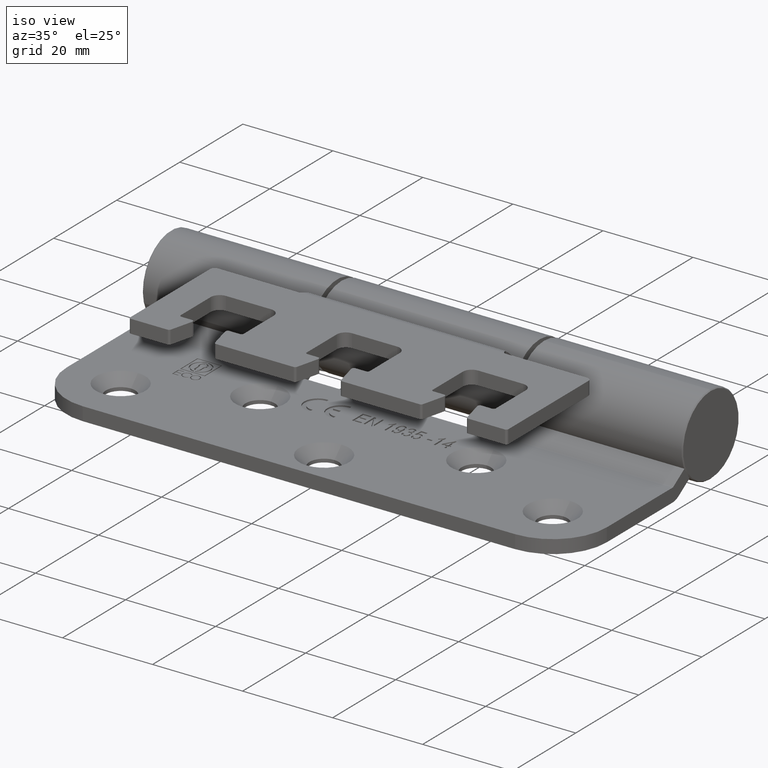
[diagram: clean part render]
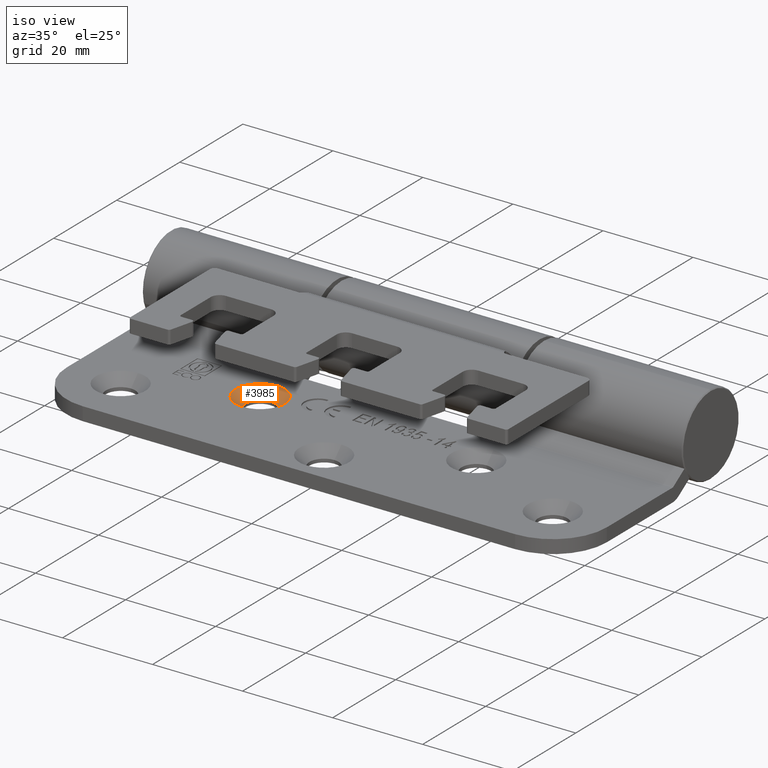
[diagram: same view with one face highlighted and labeled with its STEP entity id]
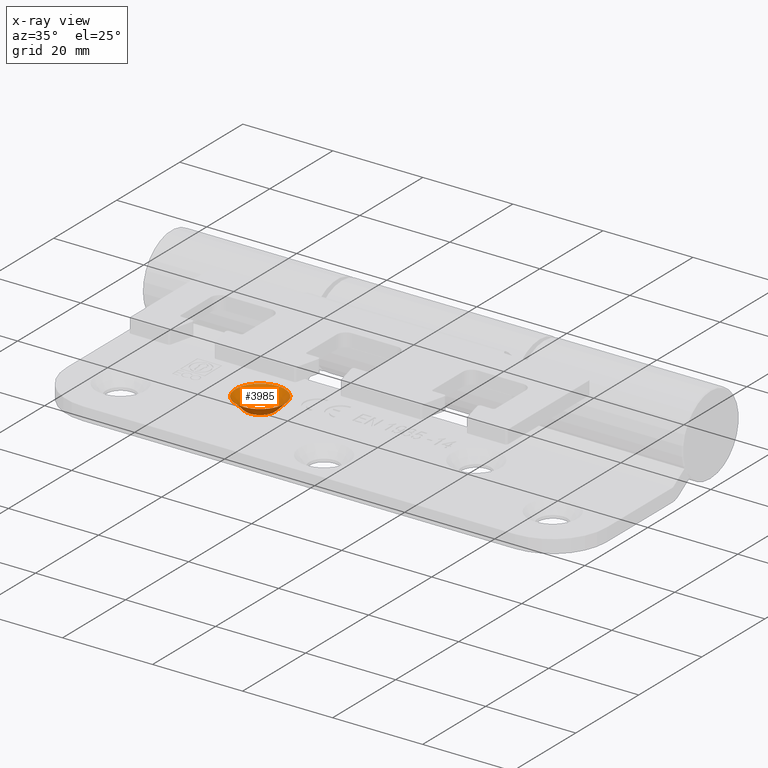
[diagram: x-ray of the same camera — body ghosted, the highlighted face saturated]
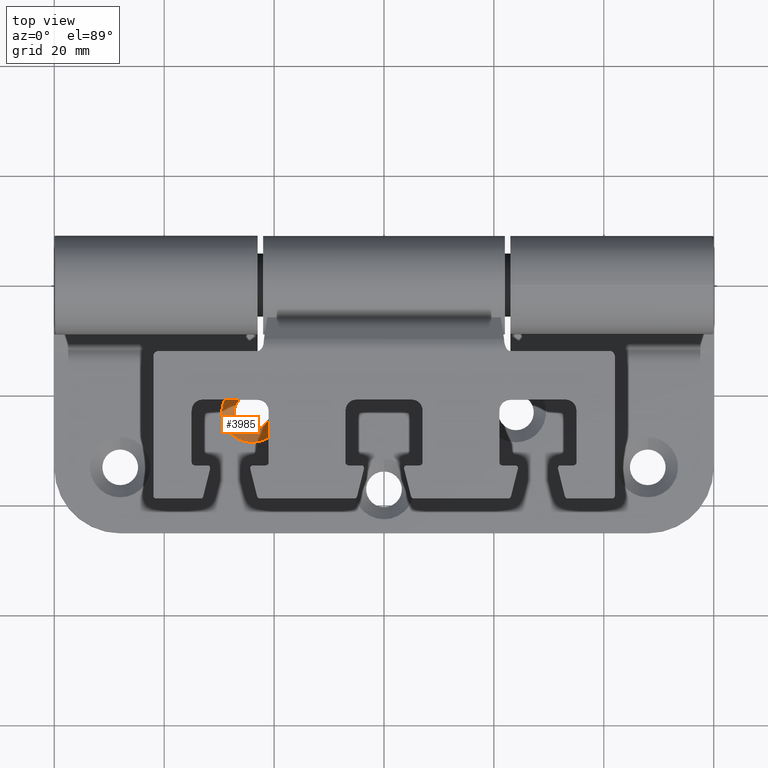
[diagram: same view with one face highlighted and labeled with its STEP entity id]
A machine part, iso view. The second image highlights one B-rep face of the part: STEP entity #3985.
The next image is the same camera in x-ray: the body ghosted, the highlighted face saturated — about 0% of this face is hidden behind the body in this view.
A second angle (top view) of the same face is appended — the face is thin or edge-on in the first view.
In plain terms, the highlighted conical surface has half-angle 45 deg.
Its self-contained STEP definition (entity closure, byte-faithful):
#13 = EDGE_LOOP ( 'NONE', ( #12611 ) ) ;
#259 = DIRECTION ( 'NONE',  ( 0.0000000000000000000, 0.0000000000000000000, 1.000000000000000000 ) ) ;
#1191 = DIRECTION ( 'NONE',  ( 0.0000000000000000000, 0.0000000000000000000, 1.000000000000000000 ) ) ;
#1645 = AXIS2_PLACEMENT_3D ( 'NONE', #6896, #2498, #9132 ) ;
#2427 = DIRECTION ( 'NONE',  ( -1.000000000000000000, 9.244463733058650000E-032, -3.944304526105024000E-031 ) ) ;
#2498 = DIRECTION ( 'NONE',  ( -1.000000000000000000, 9.244463733058650000E-032, -3.944304526105024000E-031 ) ) ;
#3266 = CARTESIAN_POINT ( 'NONE',  ( 8.250000000000053300, 23.99999999999999300, -19.75000000000015600 ) ) ;
#3540 = DIRECTION ( 'NONE',  ( -1.000000000000000000, 9.244463733058650000E-032, -3.944304526105024000E-031 ) ) ;
#3985 = ADVANCED_FACE ( 'NONE', ( #7219, #12926 ), #8434, .F. ) ;
#4544 = AXIS2_PLACEMENT_3D ( 'NONE', #4632, #2427, #259 ) ;
#4632 = CARTESIAN_POINT ( 'NONE',  ( 6.000000000000062200, 24.00000000000000000, -23.00000000000012800 ) ) ;
#6081 = VERTEX_POINT ( 'NONE', #9984 ) ;
#6896 = CARTESIAN_POINT ( 'NONE',  ( 8.250000000000053300, 23.99999999999999300, -23.00000000000018500 ) ) ;
#7219 = FACE_BOUND ( 'NONE', #9693, .T. ) ;
#7882 = CARTESIAN_POINT ( 'NONE',  ( 6.000000000000062200, 24.00000000000000000, -23.00000000000012800 ) ) ;
#8065 = EDGE_CURVE ( 'NONE', #6081, #6081, #9322, .T. ) ;
#8434 = CONICAL_SURFACE ( 'NONE', #12692, 5.500000000000046200, 0.7853981633974481700 ) ;
#8924 = VERTEX_POINT ( 'NONE', #3266 ) ;
#9132 = DIRECTION ( 'NONE',  ( 0.0000000000000000000, 0.0000000000000000000, 1.000000000000000000 ) ) ;
#9322 = CIRCLE ( 'NONE', #4544, 5.500000000000046200 ) ;
#9693 = EDGE_LOOP ( 'NONE', ( #13786 ) ) ;
#9984 = CARTESIAN_POINT ( 'NONE',  ( 6.000000000000062200, 24.00000000000000000, -17.50000000000008200 ) ) ;
#10538 = CIRCLE ( 'NONE', #1645, 3.250000000000027100 ) ;
#10720 = EDGE_CURVE ( 'NONE', #8924, #8924, #10538, .T. ) ;
#12611 = ORIENTED_EDGE ( 'NONE', *, *, #8065, .T. ) ;
#12692 = AXIS2_PLACEMENT_3D ( 'NONE', #7882, #3540, #1191 ) ;
#12926 = FACE_OUTER_BOUND ( 'NONE', #13, .T. ) ;
#13786 = ORIENTED_EDGE ( 'NONE', *, *, #10720, .F. ) ;